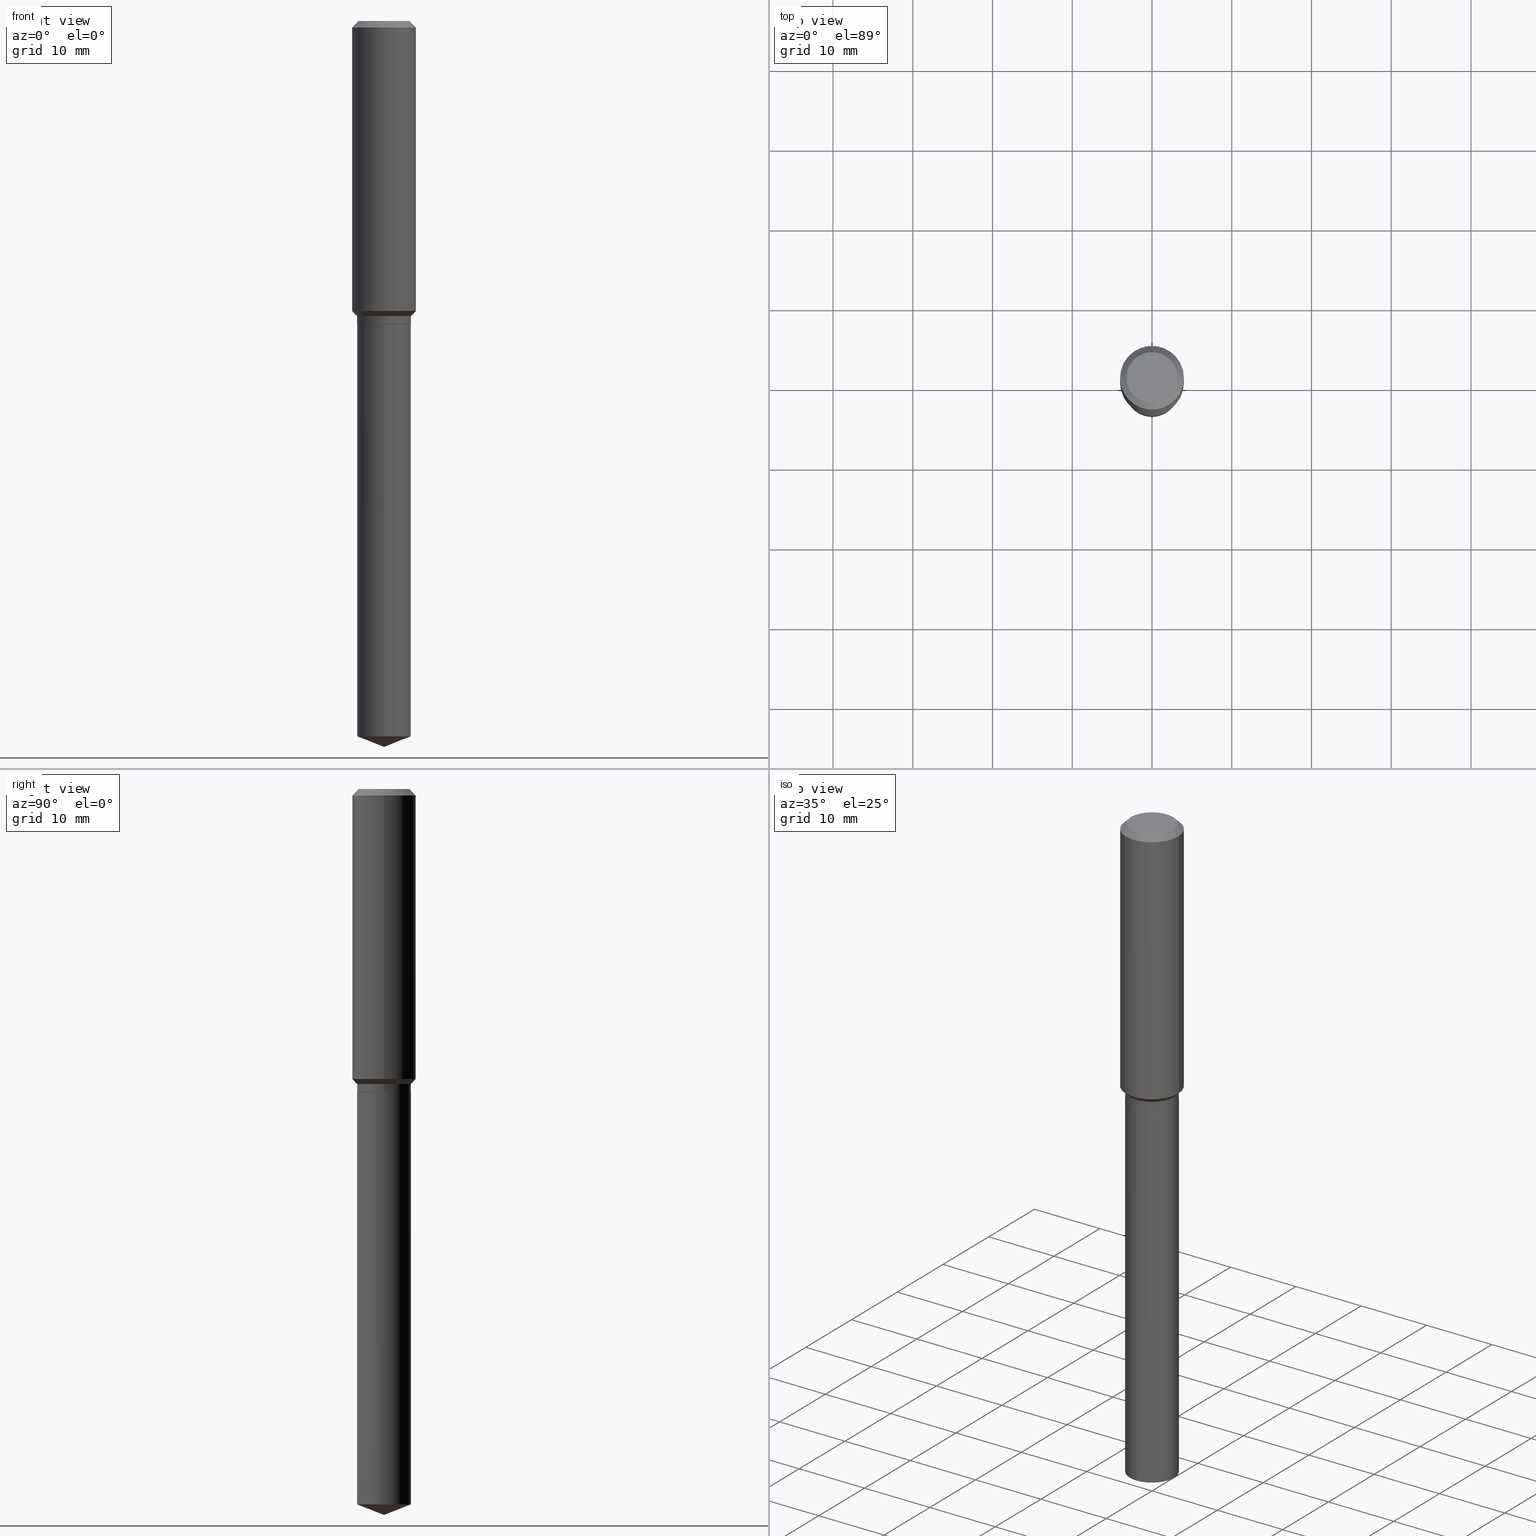
[diagram: canonical four-view strip — front | top / right | iso, engineering-drawing reading convention]
A machine part, canonical four-view strip (front | top / right | iso — engineering-drawing reading convention). The complete STEP part file that produces these views, byte-faithful:
ISO-10303-21;
HEADER;
FILE_DESCRIPTION (( 'STEP AP203' ),
    '1' );
FILE_NAME ('56448.STEP',
    '2024-04-24T17:55:03',
    ( '' ),
    ( '' ),
    'SwSTEP 2.0',
    'SolidWorks 2023',
    '' );
FILE_SCHEMA (( 'CONFIG_CONTROL_DESIGN' ));
ENDSEC;

DATA;
#1 = LINE ( 'NONE', #448, #132 ) ;
#2 = CIRCLE ( 'NONE', #308, 0.1328499999999999959 ) ;
#3 = VERTEX_POINT ( 'NONE', #342 ) ;
#4 = DIRECTION ( 'NONE',  ( -2.445468806185136597E-29, 3.491481338843145583E-15, 1.000000000000000000 ) ) ;
#5 = ORIENTED_EDGE ( 'NONE', *, *, #168, .T. ) ;
#6 =( NAMED_UNIT ( * ) PLANE_ANGLE_UNIT ( ) SI_UNIT ( $, .RADIAN. ) );
#7 = EDGE_LOOP ( 'NONE', ( #193, #99, #292, #70 ) ) ;
#8 = CALENDAR_DATE ( 2024, 24, 4 ) ;
#9 = FACE_OUTER_BOUND ( 'NONE', #314, .T. ) ;
#10 = ADVANCED_FACE ( 'NONE', ( #459 ), #117, .T. ) ;
#11 = VERTEX_POINT ( 'NONE', #306 ) ;
#12 = CIRCLE ( 'NONE', #320, 0.1328499999999999959 ) ;
#13 = ORIENTED_EDGE ( 'NONE', *, *, #373, .T. ) ;
#14 = PERSON_AND_ORGANIZATION ( #288, #102 ) ;
#15 = CIRCLE ( 'NONE', #446, 0.1328499999999999959 ) ;
#16 = CARTESIAN_POINT ( 'NONE',  ( 0.1328499999999999959, -6.011632569220125559E-15, -1.456100000000000172 ) ) ;
#17 = LINE ( 'NONE', #16, #349 ) ;
#18 = CARTESIAN_POINT ( 'NONE',  ( 8.762167928049776641E-29, -1.250990145810785612E-14, -3.583000000000000185 ) ) ;
#19 = EDGE_CURVE ( 'NONE', #76, #180, #460, .T. ) ;
#20 = SHAPE_DEFINITION_REPRESENTATION ( #481, #25 ) ;
#21 = CIRCLE ( 'NONE', #388, 0.1328499999999999959 ) ;
#22 = CARTESIAN_POINT ( 'NONE',  ( 3.659399521575438742E-29, -5.224652675444883351E-15, -1.496400000000000174 ) ) ;
#23 = AXIS2_PLACEMENT_3D ( 'NONE', #33, #185, #114 ) ;
#24 = ADVANCED_FACE ( 'NONE', ( #81 ), #142, .T. ) ;
#25 = ADVANCED_BREP_SHAPE_REPRESENTATION ( '56448', ( #258, #276, #362 ), #233 ) ;
#26 = DIRECTION ( 'NONE',  ( -2.445468806185136597E-29, 3.491481338843145583E-15, 1.000000000000000000 ) ) ;
#27 = ORIENTED_EDGE ( 'NONE', *, *, #226, .F. ) ;
#28 = DIRECTION ( 'NONE',  ( 1.000000000000000000, -6.982962677686270655E-15, 0.000000000000000000 ) ) ;
#29 = ORIENTED_EDGE ( 'NONE', *, *, #392, .T. ) ;
#30 = CARTESIAN_POINT ( 'NONE',  ( -0.1328499999999999959, 9.439560244572930676E-16, -6.534805267403642542E-30 ) ) ;
#31 = AXIS2_PLACEMENT_3D ( 'NONE', #173, #96, #242 ) ;
#32 = ORIENTED_EDGE ( 'NONE', *, *, #281, .T. ) ;
#33 = CARTESIAN_POINT ( 'NONE',  ( 3.500566322613714211E-29, -4.997880962487020966E-15, -1.431450000000000111 ) ) ;
#34 = EDGE_CURVE ( 'NONE', #140, #248, #316, .T. ) ;
#35 = ORIENTED_EDGE ( 'NONE', *, *, #19, .T. ) ;
#36 = DIRECTION ( 'NONE',  ( -6.982962677686265133E-15, -1.000000000000000000, 4.112680457153576388E-15 ) ) ;
#37 = ORIENTED_EDGE ( 'NONE', *, *, #274, .T. ) ;
#38 = CARTESIAN_POINT ( 'NONE',  ( 0.1328499999999999959, -6.011632569220125559E-15, -1.456100000000000172 ) ) ;
#39 = VECTOR ( 'NONE', #329, 39.37007874015748143 ) ;
#40 = EDGE_LOOP ( 'NONE', ( #219, #222, #145, #420 ) ) ;
#41 = DIRECTION ( 'NONE',  ( -2.445468806185136597E-29, 3.491481338843145583E-15, 1.000000000000000000 ) ) ;
#42 = EDGE_CURVE ( 'NONE', #3, #310, #199, .T. ) ;
#43 = ORIENTED_EDGE ( 'NONE', *, *, #83, .F. ) ;
#44 = DIRECTION ( 'NONE',  ( 2.445468806185136597E-29, -3.491481338843145583E-15, -1.000000000000000000 ) ) ;
#45 = EDGE_LOOP ( 'NONE', ( #374, #485, #428, #104 ) ) ;
#46 = VECTOR ( 'NONE', #372, 39.37007874015748854 ) ;
#47 = CIRCLE ( 'NONE', #350, 0.1575000000000000011 ) ;
#48 = CARTESIAN_POINT ( 'NONE',  ( -0.1575000000000000011, 9.898349595620272334E-16, -0.03150000000000019451 ) ) ;
#49 =( NAMED_UNIT ( * ) SI_UNIT ( $, .STERADIAN. ) SOLID_ANGLE_UNIT ( ) );
#50 = DIRECTION ( 'NONE',  ( 2.445468806185136597E-29, -3.491481338843145583E-15, -1.000000000000000000 ) ) ;
#51 = DIMENSIONAL_EXPONENTS ( 1.000000000000000000, 0.000000000000000000, 0.000000000000000000, 0.000000000000000000, 0.000000000000000000, 0.000000000000000000, 0.000000000000000000 ) ;
#52 = APPROVAL_DATE_TIME ( #394, #103 ) ;
#53 = EDGE_CURVE ( 'NONE', #68, #423, #21, .T. ) ;
#54 = AXIS2_PLACEMENT_3D ( 'NONE', #326, #26, #277 ) ;
#55 = AXIS2_PLACEMENT_3D ( 'NONE', #305, #44, #389 ) ;
#56 = DIRECTION ( 'NONE',  ( -2.438088387897960049E-29, 3.491481338843145188E-15, 1.000000000000000000 ) ) ;
#57 = ADVANCED_FACE ( 'NONE', ( #240 ), #284, .T. ) ;
#58 = CARTESIAN_POINT ( 'NONE',  ( 1.502549211185310459E-29, -8.313385080219499836E-15, -1.496400000000000396 ) ) ;
#59 = ADVANCED_FACE ( 'NONE', ( #9 ), #471, .T. ) ;
#60 = PERSON_AND_ORGANIZATION ( #288, #102 ) ;
#61 = CARTESIAN_POINT ( 'NONE',  ( -0.1323499999999999954, -4.281600137492280573E-15, -1.496400000000000396 ) ) ;
#62 = EDGE_LOOP ( 'NONE', ( #337, #5, #224, #449 ) ) ;
#63 = PERSON_AND_ORGANIZATION_ROLE ( 'creator' ) ;
#64 = DIRECTION ( 'NONE',  ( -2.445468806185136597E-29, 3.491481338843145583E-15, 1.000000000000000000 ) ) ;
#65 = ADVANCED_FACE ( 'NONE', ( #430 ), #174, .T. ) ;
#66 = DIRECTION ( 'NONE',  ( -2.445468806185136597E-29, 3.491481338843145583E-15, 1.000000000000000000 ) ) ;
#67 = ADVANCED_FACE ( 'NONE', ( #235 ), #169, .T. ) ;
#68 = VERTEX_POINT ( 'NONE', #354 ) ;
#69 = DIRECTION ( 'NONE',  ( -2.445468806185136597E-29, 3.491481338843145583E-15, 1.000000000000000000 ) ) ;
#70 = ORIENTED_EDGE ( 'NONE', *, *, #313, .F. ) ;
#71 = DIRECTION ( 'NONE',  ( 1.000000000000000000, -6.982962677686265922E-15, 0.000000000000000000 ) ) ;
#72 = EDGE_CURVE ( 'NONE', #447, #261, #369, .T. ) ;
#73 = FACE_OUTER_BOUND ( 'NONE', #382, .T. ) ;
#74 = ORIENTED_EDGE ( 'NONE', *, *, #406, .T. ) ;
#75 = LINE ( 'NONE', #456, #251 ) ;
#76 = VERTEX_POINT ( 'NONE', #18 ) ;
#77 = DIRECTION ( 'NONE',  ( -2.445468806185136597E-29, 3.491481338843145583E-15, 1.000000000000000000 ) ) ;
#78 = ADVANCED_FACE ( 'NONE', ( #484 ), #402, .F. ) ;
#79 = ORIENTED_EDGE ( 'NONE', *, *, #422, .T. ) ;
#80 = CARTESIAN_POINT ( 'NONE',  ( 0.000000000000000000, 0.000000000000000000, 0.000000000000000000 ) ) ;
#81 = FACE_OUTER_BOUND ( 'NONE', #109, .T. ) ;
#82 = APPROVAL_DATE_TIME ( #315, #386 ) ;
#83 = EDGE_CURVE ( 'NONE', #407, #310, #101, .T. ) ;
#84 = EDGE_LOOP ( 'NONE', ( #191, #35, #107 ) ) ;
#85 = VECTOR ( 'NONE', #411, 39.37007874015748143 ) ;
#86 = CALENDAR_DATE ( 2024, 24, 4 ) ;
#87 = DIRECTION ( 'NONE',  ( -6.982962677686266711E-15, -1.000000000000000000, 3.498627837350051949E-15 ) ) ;
#88 = PERSON_AND_ORGANIZATION ( #288, #102 ) ;
#89 = PERSON_AND_ORGANIZATION ( #288, #102 ) ;
#90 = DIRECTION ( 'NONE',  ( 1.000000000000000000, -6.982962677686270655E-15, 0.000000000000000000 ) ) ;
#91 = DIRECTION ( 'NONE',  ( -0.7071067811865451302, 2.468850131082231817E-15, -0.7071067811865499042 ) ) ;
#92 = CONICAL_SURFACE ( 'NONE', #263, 0.1328499999999999959, 0.7853981633974524978 ) ;
#93 = EDGE_CURVE ( 'NONE', #229, #164, #272, .T. ) ;
#94 = LOCAL_TIME ( 13, 55, 3.000000000000000000, #464 ) ;
#95 = CARTESIAN_POINT ( 'NONE',  ( 3.659399521575439863E-29, -5.224652675444884140E-15, -1.496400000000000396 ) ) ;
#96 = DIRECTION ( 'NONE',  ( -2.445468806185136597E-29, 3.491481338843145583E-15, 1.000000000000000000 ) ) ;
#97 = DATE_TIME_ROLE ( 'classification_date' ) ;
#98 = CYLINDRICAL_SURFACE ( 'NONE', #31, 0.1328499999999999959 ) ;
#99 = ORIENTED_EDGE ( 'NONE', *, *, #53, .T. ) ;
#100 = AXIS2_PLACEMENT_3D ( 'NONE', #393, #50, #198 ) ;
#101 = LINE ( 'NONE', #130, #298 ) ;
#102 = ORGANIZATION ( 'UNSPECIFIED', 'UNSPECIFIED', '' ) ;
#103 = APPROVAL ( #206, 'UNSPECIFIED' ) ;
#104 = ORIENTED_EDGE ( 'NONE', *, *, #351, .F. ) ;
#105 = CARTESIAN_POINT ( 'NONE',  ( -4.719860820353100843E-47, 6.738710358733633822E-33, 1.930043355456229866E-18 ) ) ;
#106 = ADVANCED_FACE ( 'NONE', ( #357 ), #245, .T. ) ;
#107 = ORIENTED_EDGE ( 'NONE', *, *, #392, .F. ) ;
#108 = CARTESIAN_POINT ( 'NONE',  ( -0.1575000000000000011, -1.434826503508131819E-15, -0.03150000000000019451 ) ) ;
#109 = EDGE_LOOP ( 'NONE', ( #246, #74, #27 ) ) ;
#110 = DIRECTION ( 'NONE',  ( -2.445468806185136597E-29, 3.491481338843145583E-15, 1.000000000000000000 ) ) ;
#111 = AXIS2_PLACEMENT_3D ( 'NONE', #425, #41, #157 ) ;
#112 = VECTOR ( 'NONE', #143, 39.37007874015748143 ) ;
#113 = EDGE_LOOP ( 'NONE', ( #79, #32, #376, #257 ) ) ;
#114 = DIRECTION ( 'NONE',  ( 1.000000000000000000, -6.982962677686267499E-15, 0.000000000000000000 ) ) ;
#115 = ORIENTED_EDGE ( 'NONE', *, *, #211, .F. ) ;
#116 = DIRECTION ( 'NONE',  ( 1.000000000000000000, -6.982962677686270655E-15, 0.000000000000000000 ) ) ;
#117 = CYLINDRICAL_SURFACE ( 'NONE', #111, 0.1575000000000000844 ) ;
#118 = PERSON_AND_ORGANIZATION ( #288, #102 ) ;
#119 = AXIS2_PLACEMENT_3D ( 'NONE', #105, #247, #301 ) ;
#120 = CARTESIAN_POINT ( 'NONE',  ( 8.762123495044533825E-29, -1.250996508870033127E-14, -3.583000000000000185 ) ) ;
#121 = PERSON_AND_ORGANIZATION_ROLE ( 'design_owner' ) ;
#122 = CC_DESIGN_PERSON_AND_ORGANIZATION_ASSIGNMENT ( #118, #121, ( #137 ) ) ;
#123 = CALENDAR_DATE ( 2024, 24, 4 ) ;
#124 = CARTESIAN_POINT ( 'NONE',  ( 0.1575000000000001676, -6.097697584222609235E-15, -1.431450000000000111 ) ) ;
#125 = VECTOR ( 'NONE', #324, 39.37007874015748143 ) ;
#126 = CONICAL_SURFACE ( 'NONE', #55, 0.1575000000000000011, 0.7853981633974449483 ) ;
#127 = DIRECTION ( 'NONE',  ( 1.000000000000000000, -6.982962677686267499E-15, 4.876176775795936353E-29 ) ) ;
#128 = DIRECTION ( 'NONE',  ( -2.445483652818804664E-29, 3.491460077618715012E-15, 1.000000000000000000 ) ) ;
#129 = CARTESIAN_POINT ( 'NONE',  ( 0.1328499999999999959, -9.276865917306205230E-16, 6.478000846644899877E-30 ) ) ;
#130 = CARTESIAN_POINT ( 'NONE',  ( -0.1575000000000000844, 1.119104808822158392E-15, -7.747322767151481189E-30 ) ) ;
#131 = AXIS2_PLACEMENT_3D ( 'NONE', #282, #289, #445 ) ;
#132 = VECTOR ( 'NONE', #458, 39.37007874015748143 ) ;
#133 = DIRECTION ( 'NONE',  ( 0.7071067811865503483, -2.468850131082287037E-15, 0.7071067811865444641 ) ) ;
#134 = EDGE_CURVE ( 'NONE', #447, #423, #437, .T. ) ;
#135 = COORDINATED_UNIVERSAL_TIME_OFFSET ( 5, 0, .BEHIND. ) ;
#136 = LINE ( 'NONE', #178, #125 ) ;
#137 = PRODUCT ( '56448', '56448', '', ( #462 ) ) ;
#138 = APPLICATION_CONTEXT ( 'configuration controlled 3d designs of mechanical parts and assemblies' ) ;
#139 = DIRECTION ( 'NONE',  ( -2.445468806185136597E-29, 3.491481338843145583E-15, 1.000000000000000000 ) ) ;
#140 = VERTEX_POINT ( 'NONE', #200 ) ;
#141 = EDGE_CURVE ( 'NONE', #423, #444, #17, .T. ) ;
#142 = CONICAL_SURFACE ( 'NONE', #426, 99.94676754583861111, 1.195550537616114850 ) ;
#143 = DIRECTION ( 'NONE',  ( -2.445468806185136877E-29, 3.491481338843145188E-15, 1.000000000000000000 ) ) ;
#144 = AXIS2_PLACEMENT_3D ( 'NONE', #367, #489, #146 ) ;
#145 = ORIENTED_EDGE ( 'NONE', *, *, #422, .F. ) ;
#146 = DIRECTION ( 'NONE',  ( -6.982962677686265133E-15, -1.000000000000000000, 4.112680457153576388E-15 ) ) ;
#147 = EDGE_CURVE ( 'NONE', #352, #378, #241, .T. ) ;
#148 = DIRECTION ( 'NONE',  ( -2.445468806185136597E-29, 3.491481338843145583E-15, 1.000000000000000000 ) ) ;
#149 = ORIENTED_EDGE ( 'NONE', *, *, #42, .T. ) ;
#150 = LINE ( 'NONE', #181, #39 ) ;
#151 = VECTOR ( 'NONE', #443, 39.37007874015748143 ) ;
#152 = APPROVAL_PERSON_ORGANIZATION ( #14, #386, #166 ) ;
#153 = ORIENTED_EDGE ( 'NONE', *, *, #226, .T. ) ;
#154 = CARTESIAN_POINT ( 'NONE',  ( -9.439721640706201686E-47, 1.347742071746726764E-32, 3.860086710912459732E-18 ) ) ;
#155 = ADVANCED_FACE ( 'NONE', ( #355 ), #98, .T. ) ;
#156 = ORIENTED_EDGE ( 'NONE', *, *, #168, .F. ) ;
#157 = DIRECTION ( 'NONE',  ( 1.000000000000000000, -6.982962677686267499E-15, 4.876176775795936353E-29 ) ) ;
#158 = FACE_OUTER_BOUND ( 'NONE', #45, .T. ) ;
#159 = CIRCLE ( 'NONE', #250, 0.1328499999999999959 ) ;
#160 = PRODUCT_DEFINITION ( 'UNKNOWN', '', #433, #380 ) ;
#161 = ORIENTED_EDGE ( 'NONE', *, *, #93, .F. ) ;
#162 = APPLICATION_PROTOCOL_DEFINITION ( 'international standard', 'config_control_design', 1994, #138 ) ;
#163 = DIRECTION ( 'NONE',  ( -2.445468806185136597E-29, 3.491481338843145583E-15, 1.000000000000000000 ) ) ;
#164 = VERTEX_POINT ( 'NONE', #171 ) ;
#165 = CARTESIAN_POINT ( 'NONE',  ( 3.659399521575438742E-29, -5.224652675444883351E-15, -1.496400000000000174 ) ) ;
#166 = APPROVAL_ROLE ( '' ) ;
#167 = CARTESIAN_POINT ( 'NONE',  ( 3.658176787172346501E-29, -5.222906934775461847E-15, -1.495900000000000230 ) ) ;
#168 = EDGE_CURVE ( 'NONE', #261, #447, #431, .T. ) ;
#169 = CONICAL_SURFACE ( 'NONE', #100, 0.1575000000000000011, 0.7853981633974449483 ) ;
#170 = CC_DESIGN_APPROVAL ( #286, ( #433 ) ) ;
#171 = CARTESIAN_POINT ( 'NONE',  ( 0.1323499999999999954, -6.148847785836662050E-15, -1.496400000000000396 ) ) ;
#172 = DIRECTION ( 'NONE',  ( 1.000000000000000000, -6.982962677686266711E-15, 0.000000000000000000 ) ) ;
#173 = CARTESIAN_POINT ( 'NONE',  ( 0.000000000000000000, 0.000000000000000000, 0.000000000000000000 ) ) ;
#174 = CONICAL_SURFACE ( 'NONE', #232, 99.94676754583861111, 1.195550537616114850 ) ;
#175 = AXIS2_PLACEMENT_3D ( 'NONE', #80, #77, #127 ) ;
#176 = DIRECTION ( 'NONE',  ( -2.445483652818804664E-29, 3.491460077618715012E-15, 1.000000000000000000 ) ) ;
#177 = EDGE_LOOP ( 'NONE', ( #451, #29, #37, #182 ) ) ;
#178 = CARTESIAN_POINT ( 'NONE',  ( -0.1323499999999999954, -4.284249364666391774E-15, -1.496400000000000396 ) ) ;
#179 = ADVANCED_FACE ( 'NONE', ( #473 ), #475, .F. ) ;
#180 = VERTEX_POINT ( 'NONE', #210 ) ;
#181 = CARTESIAN_POINT ( 'NONE',  ( -9.276865917305838410E-16, -0.1328500000000052139, -1.496399999999999730 ) ) ;
#182 = ORIENTED_EDGE ( 'NONE', *, *, #470, .F. ) ;
#183 = CARTESIAN_POINT ( 'NONE',  ( -0.1328499999999999959, -4.209470431675190374E-15, -1.495900000000000230 ) ) ;
#184 = CIRCLE ( 'NONE', #390, 0.1260000000000000009 ) ;
#185 = DIRECTION ( 'NONE',  ( -2.445468806185136597E-29, 3.491481338843145583E-15, 1.000000000000000000 ) ) ;
#186 = DIRECTION ( 'NONE',  ( 1.000000000000000000, -6.982962677686265922E-15, 4.876281427513067258E-29 ) ) ;
#187 = ORIENTED_EDGE ( 'NONE', *, *, #259, .T. ) ;
#188 = FACE_OUTER_BOUND ( 'NONE', #231, .T. ) ;
#189 = LOCAL_TIME ( 13, 55, 3.000000000000000000, #432 ) ;
#190 = ORIENTED_EDGE ( 'NONE', *, *, #295, .T. ) ;
#191 = ORIENTED_EDGE ( 'NONE', *, *, #406, .F. ) ;
#192 = APPROVAL_STATUS ( 'not_yet_approved' ) ;
#193 = ORIENTED_EDGE ( 'NONE', *, *, #281, .F. ) ;
#194 = VECTOR ( 'NONE', #265, 39.37007874015748143 ) ;
#195 = EDGE_LOOP ( 'NONE', ( #418, #209 ) ) ;
#196 = ADVANCED_FACE ( 'NONE', ( #364 ), #338, .T. ) ;
#197 = DATE_TIME_ROLE ( 'creation_date' ) ;
#198 = DIRECTION ( 'NONE',  ( -1.000000000000000000, 6.982962677686265922E-15, 0.000000000000000000 ) ) ;
#199 = LINE ( 'NONE', #48, #453 ) ;
#200 = CARTESIAN_POINT ( 'NONE',  ( 9.439560244573794479E-16, 0.1328499999999876724, -3.530668993314555415 ) ) ;
#201 = AXIS2_PLACEMENT_3D ( 'NONE', #167, #472, #207 ) ;
#202 = CARTESIAN_POINT ( 'NONE',  ( 9.439560244573295524E-16, 0.1328499999999947778, -1.496400000000000841 ) ) ;
#203 = DIRECTION ( 'NONE',  ( 1.000000000000000000, -6.982962677686265922E-15, 4.876176775795935793E-29 ) ) ;
#204 = DIRECTION ( 'NONE',  ( -2.445468806185136877E-29, 3.491481338843145188E-15, 1.000000000000000000 ) ) ;
#205 = CC_DESIGN_PERSON_AND_ORGANIZATION_ASSIGNMENT ( #311, #230, ( #160 ) ) ;
#206 = APPROVAL_STATUS ( 'not_yet_approved' ) ;
#207 = DIRECTION ( 'NONE',  ( 1.000000000000000000, -6.982962677686266711E-15, 0.000000000000000000 ) ) ;
#208 = AXIS2_PLACEMENT_3D ( 'NONE', #478, #361, #28 ) ;
#209 = ORIENTED_EDGE ( 'NONE', *, *, #470, .T. ) ;
#210 = CARTESIAN_POINT ( 'NONE',  ( -9.276865917305339455E-16, -0.1328500000000123193, -3.530668993314554083 ) ) ;
#211 = EDGE_CURVE ( 'NONE', #11, #248, #2, .T. ) ;
#212 = ORIENTED_EDGE ( 'NONE', *, *, #147, .F. ) ;
#213 = CARTESIAN_POINT ( 'NONE',  ( -0.1575000000000001676, -3.878776153664862573E-15, -1.431450000000000111 ) ) ;
#214 = CARTESIAN_POINT ( 'NONE',  ( 7.703226739483228723E-31, -1.099816621735597661E-16, -0.03150000000000019451 ) ) ;
#215 = AXIS2_PLACEMENT_3D ( 'NONE', #397, #287, #483 ) ;
#216 = CARTESIAN_POINT ( 'NONE',  ( 8.762168317674783458E-29, -1.250990145810785612E-14, -3.583000000000000185 ) ) ;
#217 = CIRCLE ( 'NONE', #299, 0.1260000000000000009 ) ;
#218 = PRODUCT_RELATED_PRODUCT_CATEGORY ( 'detail', '', ( #137 ) ) ;
#219 = ORIENTED_EDGE ( 'NONE', *, *, #72, .T. ) ;
#220 = ADVANCED_FACE ( 'NONE', ( #359 ), #92, .T. ) ;
#221 = CARTESIAN_POINT ( 'NONE',  ( 3.659399521575438742E-29, -5.224652675444883351E-15, -1.496400000000000174 ) ) ;
#222 = ORIENTED_EDGE ( 'NONE', *, *, #283, .T. ) ;
#223 = DIRECTION ( 'NONE',  ( 0.7071067811864267805, -2.468850131080992517E-15, 0.7071067811866682540 ) ) ;
#224 = ORIENTED_EDGE ( 'NONE', *, *, #134, .T. ) ;
#225 = SECURITY_CLASSIFICATION ( '', '', #404 ) ;
#226 = EDGE_CURVE ( 'NONE', #180, #140, #159, .T. ) ;
#227 = ORIENTED_EDGE ( 'NONE', *, *, #351, .T. ) ;
#228 = DIRECTION ( 'NONE',  ( 0.000000000000000000, 0.000000000000000000, 1.000000000000000000 ) ) ;
#229 = VERTEX_POINT ( 'NONE', #61 ) ;
#230 = PERSON_AND_ORGANIZATION_ROLE ( 'creator' ) ;
#231 = EDGE_LOOP ( 'NONE', ( #187, #294, #466, #463 ) ) ;
#232 = AXIS2_PLACEMENT_3D ( 'NONE', #469, #271, #87 ) ;
#233 =( GEOMETRIC_REPRESENTATION_CONTEXT ( 3 ) GLOBAL_UNCERTAINTY_ASSIGNED_CONTEXT ( ( #399 ) ) GLOBAL_UNIT_ASSIGNED_CONTEXT ( ( #381, #6, #49 ) ) REPRESENTATION_CONTEXT ( 'NONE', 'WORKASPACE' ) );
#234 = DATE_AND_TIME ( #86, #189 ) ;
#235 = FACE_OUTER_BOUND ( 'NONE', #297, .T. ) ;
#236 = PERSON_AND_ORGANIZATION_ROLE ( 'design_supplier' ) ;
#237 = DIRECTION ( 'NONE',  ( -2.445468806185136597E-29, 3.491481338843145583E-15, 1.000000000000000000 ) ) ;
#238 = AXIS2_PLACEMENT_3D ( 'NONE', #312, #269, #318 ) ;
#239 = CARTESIAN_POINT ( 'NONE',  ( 0.1575000000000000011, -1.190510096822576026E-15, -0.03150000000000019451 ) ) ;
#240 = FACE_OUTER_BOUND ( 'NONE', #40, .T. ) ;
#241 = LINE ( 'NONE', #239, #151 ) ;
#242 = DIRECTION ( 'NONE',  ( 1.000000000000000000, -6.982962677686266711E-15, 4.876176775795935232E-29 ) ) ;
#243 = LOCAL_TIME ( 13, 55, 3.000000000000000000, #345 ) ;
#244 = EDGE_CURVE ( 'NONE', #229, #261, #136, .T. ) ;
#245 = CYLINDRICAL_SURFACE ( 'NONE', #131, 0.1328499999999999959 ) ;
#246 = ORIENTED_EDGE ( 'NONE', *, *, #19, .F. ) ;
#247 = DIRECTION ( 'NONE',  ( 2.438088387897960049E-29, -3.491481338843145188E-15, -1.000000000000000000 ) ) ;
#248 = VERTEX_POINT ( 'NONE', #327 ) ;
#249 = DIRECTION ( 'NONE',  ( 1.000000000000000000, -6.982962677686265922E-15, 0.000000000000000000 ) ) ;
#250 = AXIS2_PLACEMENT_3D ( 'NONE', #322, #278, #405 ) ;
#251 = VECTOR ( 'NONE', #223, 39.37007874015748143 ) ;
#252 = DIRECTION ( 'NONE',  ( 1.000000000000000000, -6.982962677686266711E-15, 0.000000000000000000 ) ) ;
#253 = CC_DESIGN_APPROVAL ( #103, ( #225 ) ) ;
#254 = CC_DESIGN_DATE_AND_TIME_ASSIGNMENT ( #317, #197, ( #160 ) ) ;
#255 = ORIENTED_EDGE ( 'NONE', *, *, #274, .F. ) ;
#256 = DIRECTION ( 'NONE',  ( -2.445468806185136597E-29, 3.491481338843145583E-15, 1.000000000000000000 ) ) ;
#257 = ORIENTED_EDGE ( 'NONE', *, *, #141, .F. ) ;
#258 = MANIFOLD_SOLID_BREP ( 'Body-Move/Copy2[1]', #477 ) ;
#259 = EDGE_CURVE ( 'NONE', #164, #229, #330, .T. ) ;
#260 = LINE ( 'NONE', #30, #112 ) ;
#261 = VERTEX_POINT ( 'NONE', #183 ) ;
#262 = CARTESIAN_POINT ( 'NONE',  ( 0.000000000000000000, 0.000000000000000000, 0.000000000000000000 ) ) ;
#263 = AXIS2_PLACEMENT_3D ( 'NONE', #436, #139, #172 ) ;
#264 = CIRCLE ( 'NONE', #144, 0.1328499999999999959 ) ;
#265 = DIRECTION ( 'NONE',  ( -6.497071151882108003E-15, -0.9304175679820229083, 0.3665012267243014099 ) ) ;
#266 = FACE_OUTER_BOUND ( 'NONE', #488, .T. ) ;
#267 = ORIENTED_EDGE ( 'NONE', *, *, #313, .T. ) ;
#268 = PERSON_AND_ORGANIZATION ( #288, #102 ) ;
#269 = DIRECTION ( 'NONE',  ( -2.445468806185136597E-29, 3.491481338843145583E-15, 1.000000000000000000 ) ) ;
#270 = LENGTH_MEASURE_WITH_UNIT ( LENGTH_MEASURE( 0.02539999999999999897 ), #424 );
#271 = DIRECTION ( 'NONE',  ( -2.445483652818804664E-29, 3.491460077618715012E-15, 1.000000000000000000 ) ) ;
#272 = CIRCLE ( 'NONE', #279, 0.1323499999999999954 ) ;
#273 = AXIS2_PLACEMENT_3D ( 'NONE', #333, #148, #71 ) ;
#274 = EDGE_CURVE ( 'NONE', #180, #11, #150, .T. ) ;
#275 = PERSON_AND_ORGANIZATION_ROLE ( 'classification_officer' ) ;
#276 = MANIFOLD_SOLID_BREP ( 'Body-Move/Copy2[2]', #438 ) ;
#277 = DIRECTION ( 'NONE',  ( 1.000000000000000000, -6.982962677686266711E-15, 0.000000000000000000 ) ) ;
#278 = DIRECTION ( 'NONE',  ( -2.445483652818804664E-29, 3.491460077618715012E-15, 1.000000000000000000 ) ) ;
#279 = AXIS2_PLACEMENT_3D ( 'NONE', #95, #237, #90 ) ;
#280 = CIRCLE ( 'NONE', #23, 0.1575000000000001676 ) ;
#281 = EDGE_CURVE ( 'NONE', #68, #407, #452, .T. ) ;
#282 = CARTESIAN_POINT ( 'NONE',  ( 3.659399521575438742E-29, -5.224652675444883351E-15, -1.496400000000000174 ) ) ;
#283 = EDGE_CURVE ( 'NONE', #261, #68, #260, .T. ) ;
#284 = CYLINDRICAL_SURFACE ( 'NONE', #480, 0.1328499999999999959 ) ;
#285 = COORDINATED_UNIVERSAL_TIME_OFFSET ( 5, 0, .BEHIND. ) ;
#286 = APPROVAL ( #468, 'UNSPECIFIED' ) ;
#287 = DIRECTION ( 'NONE',  ( 2.445483652818804384E-29, -3.491460077618715012E-15, -1.000000000000000000 ) ) ;
#288 = PERSON ( 'UNSPECIFIED', 'UNSPECIFIED', 'UNSPECIFIED', ('UNSPECIFIED'), ('UNSPECIFIED'), ('UNSPECIFIED') ) ;
#289 = DIRECTION ( 'NONE',  ( -2.445483652818804664E-29, 3.491460077618715012E-15, 1.000000000000000000 ) ) ;
#290 = CC_DESIGN_SECURITY_CLASSIFICATION ( #225, ( #433 ) ) ;
#291 = CARTESIAN_POINT ( 'NONE',  ( -9.439721640706201686E-47, 1.347742071746726764E-32, 3.860086710912459732E-18 ) ) ;
#292 = ORIENTED_EDGE ( 'NONE', *, *, #141, .T. ) ;
#293 = LINE ( 'NONE', #216, #46 ) ;
#294 = ORIENTED_EDGE ( 'NONE', *, *, #244, .T. ) ;
#295 = EDGE_CURVE ( 'NONE', #352, #3, #217, .T. ) ;
#296 = CARTESIAN_POINT ( 'NONE',  ( 3.560847128686177889E-29, -5.083945977489504641E-15, -1.456100000000000172 ) ) ;
#297 = EDGE_LOOP ( 'NONE', ( #212, #335, #149, #304 ) ) ;
#298 = VECTOR ( 'NONE', #204, 39.37007874015748143 ) ;
#299 = AXIS2_PLACEMENT_3D ( 'NONE', #154, #377, #490 ) ;
#300 = CC_DESIGN_PERSON_AND_ORGANIZATION_ASSIGNMENT ( #60, #236, ( #433 ) ) ;
#301 = DIRECTION ( 'NONE',  ( -1.000000000000000000, 6.982962677686265922E-15, -4.876176775795935793E-29 ) ) ;
#302 = CARTESIAN_POINT ( 'NONE',  ( 0.000000000000000000, 0.000000000000000000, 0.000000000000000000 ) ) ;
#303 = ORIENTED_EDGE ( 'NONE', *, *, #368, .T. ) ;
#304 = ORIENTED_EDGE ( 'NONE', *, *, #341, .T. ) ;
#305 = CARTESIAN_POINT ( 'NONE',  ( 7.703226739483228723E-31, -1.099816621735597661E-16, -0.03150000000000019451 ) ) ;
#306 = CARTESIAN_POINT ( 'NONE',  ( -9.276865917305838410E-16, -0.1328500000000052139, -1.496399999999999730 ) ) ;
#307 = DIRECTION ( 'NONE',  ( -2.445483652818804664E-29, 3.491460077618715012E-15, 1.000000000000000000 ) ) ;
#308 = AXIS2_PLACEMENT_3D ( 'NONE', #22, #176, #442 ) ;
#309 = CIRCLE ( 'NONE', #273, 0.1575000000000000011 ) ;
#310 = VERTEX_POINT ( 'NONE', #108 ) ;
#311 = PERSON_AND_ORGANIZATION ( #288, #102 ) ;
#312 = CARTESIAN_POINT ( 'NONE',  ( 3.659399521575439863E-29, -5.224652675444884140E-15, -1.496400000000000396 ) ) ;
#313 = EDGE_CURVE ( 'NONE', #407, #444, #461, .T. ) ;
#314 = EDGE_LOOP ( 'NONE', ( #347, #371, #303, #156 ) ) ;
#315 = DATE_AND_TIME ( #8, #243 ) ;
#316 = LINE ( 'NONE', #202, #356 ) ;
#317 = DATE_AND_TIME ( #123, #94 ) ;
#318 = DIRECTION ( 'NONE',  ( 1.000000000000000000, -6.982962677686270655E-15, 0.000000000000000000 ) ) ;
#319 = APPLICATION_CONTEXT ( 'configuration controlled 3d designs of mechanical parts and assemblies' ) ;
#320 = AXIS2_PLACEMENT_3D ( 'NONE', #296, #256, #252 ) ;
#321 = CARTESIAN_POINT ( 'NONE',  ( 3.658176787172346501E-29, -5.222906934775461847E-15, -1.495900000000000230 ) ) ;
#322 = CARTESIAN_POINT ( 'NONE',  ( 8.634171090162348081E-29, -1.232722165274026422E-14, -3.530668993314554971 ) ) ;
#323 = EDGE_CURVE ( 'NONE', #3, #352, #184, .T. ) ;
#324 = DIRECTION ( 'NONE',  ( -0.7071067811864267805, 7.493145998869918709E-15, 0.7071067811866682540 ) ) ;
#325 = CC_DESIGN_APPROVAL ( #386, ( #160 ) ) ;
#326 = CARTESIAN_POINT ( 'NONE',  ( 3.560847128686177889E-29, -5.083945977489504641E-15, -1.456100000000000172 ) ) ;
#327 = CARTESIAN_POINT ( 'NONE',  ( 9.439560244573794479E-16, 0.1328499999999947501, -1.496400000000000841 ) ) ;
#328 = EDGE_LOOP ( 'NONE', ( #43, #267, #227, #344 ) ) ;
#329 = DIRECTION ( 'NONE',  ( -2.445483652818804384E-29, 3.491460077618715012E-15, 1.000000000000000000 ) ) ;
#330 = CIRCLE ( 'NONE', #208, 0.1323499999999999954 ) ;
#331 = ORIENTED_EDGE ( 'NONE', *, *, #323, .T. ) ;
#332 = PLANE ( 'NONE',  #119 ) ;
#333 = CARTESIAN_POINT ( 'NONE',  ( 7.703226739483228723E-31, -1.099816621735597661E-16, -0.03150000000000019451 ) ) ;
#334 = CC_DESIGN_PERSON_AND_ORGANIZATION_ASSIGNMENT ( #435, #63, ( #433 ) ) ;
#335 = ORIENTED_EDGE ( 'NONE', *, *, #323, .F. ) ;
#336 = FACE_OUTER_BOUND ( 'NONE', #412, .T. ) ;
#337 = ORIENTED_EDGE ( 'NONE', *, *, #283, .F. ) ;
#338 = CONICAL_SURFACE ( 'NONE', #54, 0.1328499999999999959, 0.7853981633974524978 ) ;
#339 = AXIS2_PLACEMENT_3D ( 'NONE', #419, #69, #366 ) ;
#340 = CARTESIAN_POINT ( 'NONE',  ( 3.659399521575439863E-29, -5.224652675444884140E-15, -1.496400000000000396 ) ) ;
#341 = EDGE_CURVE ( 'NONE', #310, #378, #47, .T. ) ;
#342 = CARTESIAN_POINT ( 'NONE',  ( -0.1260000000000000009, 9.348441284752484904E-16, 3.860086710906114178E-18 ) ) ;
#343 = DIRECTION ( 'NONE',  ( -6.982962677686265133E-15, -1.000000000000000000, 4.112680457153576388E-15 ) ) ;
#344 = ORIENTED_EDGE ( 'NONE', *, *, #341, .F. ) ;
#345 = COORDINATED_UNIVERSAL_TIME_OFFSET ( 5, 0, .BEHIND. ) ;
#346 = DIRECTION ( 'NONE',  ( 1.000000000000000000, -6.982962677686266711E-15, 4.876176775795935232E-29 ) ) ;
#347 = ORIENTED_EDGE ( 'NONE', *, *, #244, .F. ) ;
#348 = DIRECTION ( 'NONE',  ( 1.000000000000000000, 0.000000000000000000, 0.000000000000000000 ) ) ;
#349 = VECTOR ( 'NONE', #133, 39.37007874015748854 ) ;
#350 = AXIS2_PLACEMENT_3D ( 'NONE', #214, #110, #249 ) ;
#351 = EDGE_CURVE ( 'NONE', #444, #378, #1, .T. ) ;
#352 = VERTEX_POINT ( 'NONE', #415 ) ;
#353 = APPROVAL_DATE_TIME ( #234, #286 ) ;
#354 = CARTESIAN_POINT ( 'NONE',  ( -0.1328499999999999959, -4.209470431675190374E-15, -1.456100000000000172 ) ) ;
#355 = FACE_OUTER_BOUND ( 'NONE', #62, .T. ) ;
#356 = VECTOR ( 'NONE', #474, 39.37007874015748143 ) ;
#357 = FACE_OUTER_BOUND ( 'NONE', #177, .T. ) ;
#358 = ADVANCED_FACE ( 'NONE', ( #336 ), #332, .F. ) ;
#359 = FACE_OUTER_BOUND ( 'NONE', #113, .T. ) ;
#360 = APPROVAL_ROLE ( '' ) ;
#361 = DIRECTION ( 'NONE',  ( -2.445468806185136597E-29, 3.491481338843145583E-15, 1.000000000000000000 ) ) ;
#362 = AXIS2_PLACEMENT_3D ( 'NONE', #262, #228, #348 ) ;
#363 = DATE_AND_TIME ( #400, #439 ) ;
#364 = FACE_OUTER_BOUND ( 'NONE', #7, .T. ) ;
#365 = ORIENTED_EDGE ( 'NONE', *, *, #147, .T. ) ;
#366 = DIRECTION ( 'NONE',  ( 1.000000000000000000, -6.982962677686267499E-15, 0.000000000000000000 ) ) ;
#367 = CARTESIAN_POINT ( 'NONE',  ( 8.634171090162348081E-29, -1.232722165274026422E-14, -3.530668993314554971 ) ) ;
#368 = EDGE_CURVE ( 'NONE', #164, #447, #75, .T. ) ;
#369 = CIRCLE ( 'NONE', #201, 0.1328499999999999959 ) ;
#370 = LOCAL_TIME ( 13, 55, 3.000000000000000000, #285 ) ;
#371 = ORIENTED_EDGE ( 'NONE', *, *, #93, .T. ) ;
#372 = DIRECTION ( 'NONE',  ( 6.611014441532053967E-15, 0.9304175679820254619, 0.3665012267242948041 ) ) ;
#373 = EDGE_CURVE ( 'NONE', #378, #310, #309, .T. ) ;
#374 = ORIENTED_EDGE ( 'NONE', *, *, #414, .T. ) ;
#375 = DIRECTION ( 'NONE',  ( -2.445483652818804664E-29, 3.491460077618715012E-15, 1.000000000000000000 ) ) ;
#376 = ORIENTED_EDGE ( 'NONE', *, *, #414, .F. ) ;
#377 = DIRECTION ( 'NONE',  ( -2.445468806185136597E-29, 3.491481338843145583E-15, 1.000000000000000000 ) ) ;
#378 = VERTEX_POINT ( 'NONE', #413 ) ;
#379 = CONICAL_SURFACE ( 'NONE', #417, 0.1323499999999999954, 0.7853981633972775267 ) ;
#380 = DESIGN_CONTEXT ( 'detailed design', #138, 'design' ) ;
#381 =( CONVERSION_BASED_UNIT ( 'INCH', #270 ) LENGTH_UNIT ( ) NAMED_UNIT ( #51 ) );
#382 = EDGE_LOOP ( 'NONE', ( #153, #387, #115, #255 ) ) ;
#383 = CYLINDRICAL_SURFACE ( 'NONE', #175, 0.1575000000000000844 ) ;
#384 = CARTESIAN_POINT ( 'NONE',  ( -8.751673825769712260E-28, 1.249491249005610537E-13, 35.78707874015748303 ) ) ;
#385 = APPLICATION_PROTOCOL_DEFINITION ( 'international standard', 'config_control_design', 1994, #319 ) ;
#386 = APPROVAL ( #192, 'UNSPECIFIED' ) ;
#387 = ORIENTED_EDGE ( 'NONE', *, *, #34, .T. ) ;
#388 = AXIS2_PLACEMENT_3D ( 'NONE', #476, #440, #403 ) ;
#389 = DIRECTION ( 'NONE',  ( -1.000000000000000000, 6.982962677686265922E-15, 0.000000000000000000 ) ) ;
#390 = AXIS2_PLACEMENT_3D ( 'NONE', #291, #66, #186 ) ;
#391 = APPROVAL_ROLE ( '' ) ;
#392 = EDGE_CURVE ( 'NONE', #140, #180, #264, .T. ) ;
#393 = CARTESIAN_POINT ( 'NONE',  ( 7.703226739483228723E-31, -1.099816621735597661E-16, -0.03150000000000019451 ) ) ;
#394 = DATE_AND_TIME ( #396, #370 ) ;
#395 = DIRECTION ( 'NONE',  ( -6.982962677686266711E-15, -1.000000000000000000, 3.498627837350051949E-15 ) ) ;
#396 = CALENDAR_DATE ( 2024, 24, 4 ) ;
#397 = CARTESIAN_POINT ( 'NONE',  ( 3.659399521575438742E-29, -5.224652675444883351E-15, -1.496400000000000174 ) ) ;
#398 = AXIS2_PLACEMENT_3D ( 'NONE', #221, #375, #36 ) ;
#399 = UNCERTAINTY_MEASURE_WITH_UNIT (LENGTH_MEASURE( 1.000000000000000082E-05 ), #381, 'distance_accuracy_value', 'NONE');
#400 = CALENDAR_DATE ( 2024, 24, 4 ) ;
#401 = CC_DESIGN_DATE_AND_TIME_ASSIGNMENT ( #363, #97, ( #225 ) ) ;
#402 = PLANE ( 'NONE',  #215 ) ;
#403 = DIRECTION ( 'NONE',  ( 1.000000000000000000, -6.982962677686266711E-15, 0.000000000000000000 ) ) ;
#404 = SECURITY_CLASSIFICATION_LEVEL ( 'unclassified' ) ;
#405 = DIRECTION ( 'NONE',  ( -6.982962677686265133E-15, -1.000000000000000000, 4.112680457153576388E-15 ) ) ;
#406 = EDGE_CURVE ( 'NONE', #76, #140, #293, .T. ) ;
#407 = VERTEX_POINT ( 'NONE', #213 ) ;
#408 = DIRECTION ( 'NONE',  ( 1.000000000000000000, -6.982962677686266711E-15, 0.000000000000000000 ) ) ;
#409 = APPROVAL_PERSON_ORGANIZATION ( #268, #286, #391 ) ;
#410 = EDGE_LOOP ( 'NONE', ( #457, #161 ) ) ;
#411 = DIRECTION ( 'NONE',  ( -2.445468806185136877E-29, 3.491481338843145188E-15, 1.000000000000000000 ) ) ;
#412 = EDGE_LOOP ( 'NONE', ( #331, #190 ) ) ;
#413 = CARTESIAN_POINT ( 'NONE',  ( 0.1575000000000000011, -1.209798283909146741E-15, -0.03150000000000019451 ) ) ;
#414 = EDGE_CURVE ( 'NONE', #444, #407, #280, .T. ) ;
#415 = CARTESIAN_POINT ( 'NONE',  ( 0.1260000000000000009, -1.027466422270894443E-15, 3.860086710919128072E-18 ) ) ;
#416 = AXIS2_PLACEMENT_3D ( 'NONE', #58, #56, #203 ) ;
#417 = AXIS2_PLACEMENT_3D ( 'NONE', #340, #4, #116 ) ;
#418 = ORIENTED_EDGE ( 'NONE', *, *, #211, .T. ) ;
#419 = CARTESIAN_POINT ( 'NONE',  ( 3.500566322613714211E-29, -4.997880962487020966E-15, -1.431450000000000111 ) ) ;
#420 = ORIENTED_EDGE ( 'NONE', *, *, #134, .F. ) ;
#421 = CYLINDRICAL_SURFACE ( 'NONE', #398, 0.1328499999999999959 ) ;
#422 = EDGE_CURVE ( 'NONE', #423, #68, #12, .T. ) ;
#423 = VERTEX_POINT ( 'NONE', #38 ) ;
#424 =( LENGTH_UNIT ( ) NAMED_UNIT ( * ) SI_UNIT ( $, .METRE. ) );
#425 = CARTESIAN_POINT ( 'NONE',  ( 0.000000000000000000, 0.000000000000000000, 0.000000000000000000 ) ) ;
#426 = AXIS2_PLACEMENT_3D ( 'NONE', #384, #128, #395 ) ;
#427 = ORIENTED_EDGE ( 'NONE', *, *, #295, .F. ) ;
#428 = ORIENTED_EDGE ( 'NONE', *, *, #373, .F. ) ;
#429 = CARTESIAN_POINT ( 'NONE',  ( 0.1328499999999999959, -6.150593526506082765E-15, -1.495900000000000230 ) ) ;
#430 = FACE_OUTER_BOUND ( 'NONE', #84, .T. ) ;
#431 = CIRCLE ( 'NONE', #487, 0.1328499999999999959 ) ;
#432 = COORDINATED_UNIVERSAL_TIME_OFFSET ( 5, 0, .BEHIND. ) ;
#433 = PRODUCT_DEFINITION_FORMATION_WITH_SPECIFIED_SOURCE ( 'ANY', '', #137, .NOT_KNOWN. ) ;
#434 = ADVANCED_FACE ( 'NONE', ( #73 ), #421, .T. ) ;
#435 = PERSON_AND_ORGANIZATION ( #288, #102 ) ;
#436 = CARTESIAN_POINT ( 'NONE',  ( 3.560847128686177889E-29, -5.083945977489504641E-15, -1.456100000000000172 ) ) ;
#437 = LINE ( 'NONE', #129, #85 ) ;
#438 = CLOSED_SHELL ( 'NONE', ( #441, #479, #465, #220, #57, #155, #196, #10, #67, #358, #179, #59 ) ) ;
#439 = LOCAL_TIME ( 13, 55, 3.000000000000000000, #135 ) ;
#440 = DIRECTION ( 'NONE',  ( -2.445468806185136597E-29, 3.491481338843145583E-15, 1.000000000000000000 ) ) ;
#441 = ADVANCED_FACE ( 'NONE', ( #188 ), #379, .T. ) ;
#442 = DIRECTION ( 'NONE',  ( -6.982962677686265133E-15, -1.000000000000000000, 4.112680457153576388E-15 ) ) ;
#443 = DIRECTION ( 'NONE',  ( 0.7071067811865451302, -7.319954787623248157E-15, -0.7071067811865499042 ) ) ;
#444 = VERTEX_POINT ( 'NONE', #124 ) ;
#445 = DIRECTION ( 'NONE',  ( -6.982962677686265133E-15, -1.000000000000000000, 4.112680457153576388E-15 ) ) ;
#446 = AXIS2_PLACEMENT_3D ( 'NONE', #165, #307, #343 ) ;
#447 = VERTEX_POINT ( 'NONE', #429 ) ;
#448 = CARTESIAN_POINT ( 'NONE',  ( 0.1575000000000000844, -1.099816621735587677E-15, 7.679978421878603638E-30 ) ) ;
#449 = ORIENTED_EDGE ( 'NONE', *, *, #53, .F. ) ;
#450 = DIRECTION ( 'NONE',  ( -0.7071067811865503483, 7.493145998870363626E-15, 0.7071067811865444641 ) ) ;
#451 = ORIENTED_EDGE ( 'NONE', *, *, #34, .F. ) ;
#452 = LINE ( 'NONE', #486, #454 ) ;
#453 = VECTOR ( 'NONE', #91, 39.37007874015748143 ) ;
#454 = VECTOR ( 'NONE', #450, 39.37007874015748854 ) ;
#455 = ORIENTED_EDGE ( 'NONE', *, *, #42, .F. ) ;
#456 = CARTESIAN_POINT ( 'NONE',  ( 0.1323499999999999954, -6.148847785836662050E-15, -1.496400000000000396 ) ) ;
#457 = ORIENTED_EDGE ( 'NONE', *, *, #259, .F. ) ;
#458 = DIRECTION ( 'NONE',  ( -2.445468806185136877E-29, 3.491481338843145188E-15, 1.000000000000000000 ) ) ;
#459 = FACE_OUTER_BOUND ( 'NONE', #328, .T. ) ;
#460 = LINE ( 'NONE', #120, #194 ) ;
#461 = CIRCLE ( 'NONE', #339, 0.1575000000000001676 ) ;
#462 = MECHANICAL_CONTEXT ( 'NONE', #319, 'mechanical' ) ;
#463 = ORIENTED_EDGE ( 'NONE', *, *, #368, .F. ) ;
#464 = COORDINATED_UNIVERSAL_TIME_OFFSET ( 5, 0, .BEHIND. ) ;
#465 = ADVANCED_FACE ( 'NONE', ( #158 ), #383, .T. ) ;
#466 = ORIENTED_EDGE ( 'NONE', *, *, #72, .F. ) ;
#467 = CC_DESIGN_PERSON_AND_ORGANIZATION_ASSIGNMENT ( #88, #275, ( #225 ) ) ;
#468 = APPROVAL_STATUS ( 'not_yet_approved' ) ;
#469 = CARTESIAN_POINT ( 'NONE',  ( -8.751673825769712260E-28, 1.249491249005610537E-13, 35.78707874015748303 ) ) ;
#470 = EDGE_CURVE ( 'NONE', #248, #11, #15, .T. ) ;
#471 = CONICAL_SURFACE ( 'NONE', #238, 0.1323499999999999954, 0.7853981633972775267 ) ;
#472 = DIRECTION ( 'NONE',  ( -2.445468806185136597E-29, 3.491481338843145583E-15, 1.000000000000000000 ) ) ;
#473 = FACE_OUTER_BOUND ( 'NONE', #410, .T. ) ;
#474 = DIRECTION ( 'NONE',  ( -2.445483652818804384E-29, 3.491460077618715012E-15, 1.000000000000000000 ) ) ;
#475 = PLANE ( 'NONE',  #416 ) ;
#476 = CARTESIAN_POINT ( 'NONE',  ( 3.560847128686177889E-29, -5.083945977489504641E-15, -1.456100000000000172 ) ) ;
#477 = CLOSED_SHELL ( 'NONE', ( #434, #24, #65, #106, #78 ) ) ;
#478 = CARTESIAN_POINT ( 'NONE',  ( 3.659399521575439863E-29, -5.224652675444884140E-15, -1.496400000000000396 ) ) ;
#479 = ADVANCED_FACE ( 'NONE', ( #266 ), #126, .T. ) ;
#480 = AXIS2_PLACEMENT_3D ( 'NONE', #302, #163, #346 ) ;
#481 = PRODUCT_DEFINITION_SHAPE ( 'NONE', 'NONE',  #160 ) ;
#482 = APPROVAL_PERSON_ORGANIZATION ( #89, #103, #360 ) ;
#483 = DIRECTION ( 'NONE',  ( 6.982962677686265922E-15, 1.000000000000000000, -3.491460077618715012E-15 ) ) ;
#484 = FACE_OUTER_BOUND ( 'NONE', #195, .T. ) ;
#485 = ORIENTED_EDGE ( 'NONE', *, *, #83, .T. ) ;
#486 = CARTESIAN_POINT ( 'NONE',  ( -0.1328499999999999959, -4.139989953032212165E-15, -1.456100000000000172 ) ) ;
#487 = AXIS2_PLACEMENT_3D ( 'NONE', #321, #64, #408 ) ;
#488 = EDGE_LOOP ( 'NONE', ( #427, #365, #13, #455 ) ) ;
#489 = DIRECTION ( 'NONE',  ( -2.445483652818804664E-29, 3.491460077618715012E-15, 1.000000000000000000 ) ) ;
#490 = DIRECTION ( 'NONE',  ( 1.000000000000000000, -6.982962677686265922E-15, 4.876281427513067258E-29 ) ) ;
ENDSEC;
END-ISO-10303-21;
